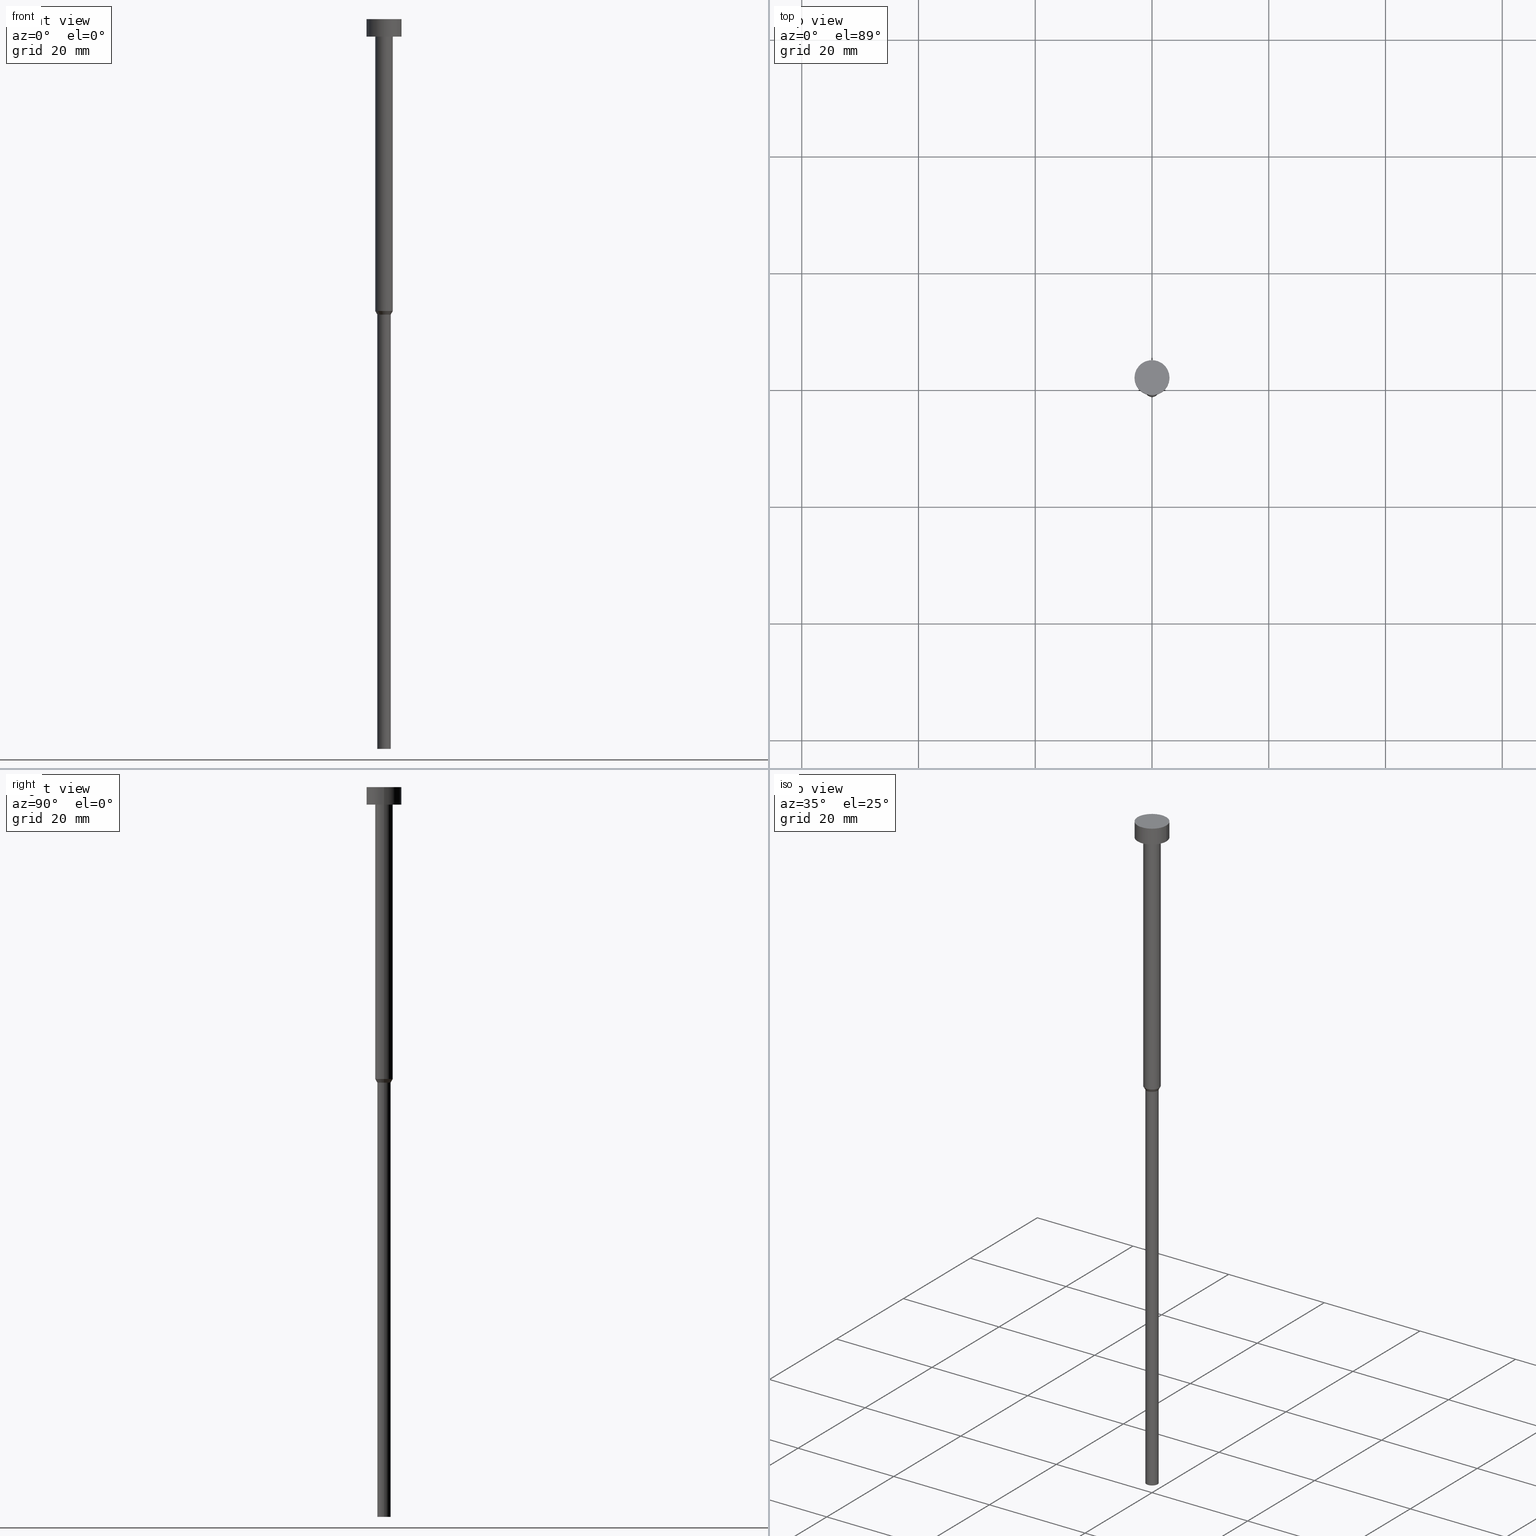
[diagram: canonical four-view strip — front | top / right | iso, engineering-drawing reading convention]
A machine part, canonical four-view strip (front | top / right | iso — engineering-drawing reading convention). The complete STEP part file that produces these views, byte-faithful:
ISO-10303-21;
HEADER;
FILE_DESCRIPTION (( 'STEP AP203' ),
    '1' );
FILE_NAME ('cbb3.STEP',
    '2023-02-13T10:03:09',
    ( '' ),
    ( '' ),
    'SwSTEP 2.0',
    'SolidWorks 2019',
    '' );
FILE_SCHEMA (( 'CONFIG_CONTROL_DESIGN' ));
ENDSEC;

DATA;
#1 = FACE_OUTER_BOUND ( 'NONE', #271, .T. ) ;
#2 = EDGE_CURVE ( 'NONE', #183, #113, #18, .T. ) ;
#3 = CIRCLE ( 'NONE', #246, 1.500000000000000000 ) ;
#4 = DIRECTION ( 'NONE',  ( 1.000000000000000000, 0.000000000000000000, 0.000000000000000000 ) ) ;
#5 = EDGE_LOOP ( 'NONE', ( #299, #293 ) ) ;
#6 = LOCAL_TIME ( 11, 3, 9.000000000000000000, #244 ) ;
#7 = ADVANCED_FACE ( 'NONE', ( #88 ), #315, .T. ) ;
#8 = DIRECTION ( 'NONE',  ( -0.000000000000000000, -0.000000000000000000, 1.000000000000000000 ) ) ;
#9 = EDGE_CURVE ( 'NONE', #332, #297, #261, .T. ) ;
#10 = ORIENTED_EDGE ( 'NONE', *, *, #2, .F. ) ;
#11 = PRODUCT_DEFINITION ( 'NEZN�M�', '', #24, #264 ) ;
#12 = CIRCLE ( 'NONE', #137, 3.000000000000000000 ) ;
#13 = ORIENTED_EDGE ( 'NONE', *, *, #241, .F. ) ;
#14 = ADVANCED_FACE ( 'NONE', ( #35 ), #66, .T. ) ;
#15 = CARTESIAN_POINT ( 'NONE',  ( 1.500000000000000000, 0.000000000000000000, -50.00000000000000000 ) ) ;
#16 = CARTESIAN_POINT ( 'NONE',  ( 0.000000000000000000, -3.000000000000000000, -3.000000000000000888 ) ) ;
#17 = CALENDAR_DATE ( 2023, 13, 2 ) ;
#18 = CIRCLE ( 'NONE', #201, 3.000000000000000000 ) ;
#19 = CARTESIAN_POINT ( 'NONE',  ( 0.000000000000000000, 0.000000000000000000, -50.60621778264910375 ) ) ;
#20 = CARTESIAN_POINT ( 'NONE',  ( 0.000000000000000000, 0.000000000000000000, 0.000000000000000000 ) ) ;
#21 = PERSON_AND_ORGANIZATION ( #287, #191 ) ;
#22 = DIRECTION ( 'NONE',  ( -0.000000000000000000, -0.000000000000000000, 1.000000000000000000 ) ) ;
#23 = EDGE_LOOP ( 'NONE', ( #343, #341, #154, #83 ) ) ;
#24 = PRODUCT_DEFINITION_FORMATION_WITH_SPECIFIED_SOURCE ( 'LIBOVOLN�', '', #289, .NOT_KNOWN. ) ;
#25 = PERSON_AND_ORGANIZATION_ROLE ( 'classification_officer' ) ;
#26 = APPROVAL_DATE_TIME ( #56, #167 ) ;
#27 = EDGE_CURVE ( 'NONE', #140, #64, #318, .T. ) ;
#28 = CYLINDRICAL_SURFACE ( 'NONE', #314, 3.000000000000000000 ) ;
#29 = CARTESIAN_POINT ( 'NONE',  ( -1.149999999999999911, 1.408343819019456028E-16, -125.0000000000000000 ) ) ;
#30 =( NAMED_UNIT ( * ) PLANE_ANGLE_UNIT ( ) SI_UNIT ( $, .RADIAN. ) );
#31 = CARTESIAN_POINT ( 'NONE',  ( -3.000000000000000000, 3.673940397442059868E-16, 0.000000000000000000 ) ) ;
#32 = AXIS2_PLACEMENT_3D ( 'NONE', #139, #117, #229 ) ;
#33 = CONICAL_SURFACE ( 'NONE', #242, 1.500000000000000000, 0.5235987755983008141 ) ;
#34 = AXIS2_PLACEMENT_3D ( 'NONE', #210, #176, #48 ) ;
#35 = FACE_OUTER_BOUND ( 'NONE', #339, .T. ) ;
#36 = DIRECTION ( 'NONE',  ( 1.000000000000000000, 0.000000000000000000, 0.000000000000000000 ) ) ;
#37 = PLANE ( 'NONE',  #232 ) ;
#38 = DIRECTION ( 'NONE',  ( -0.000000000000000000, -0.000000000000000000, 1.000000000000000000 ) ) ;
#39 = ORIENTED_EDGE ( 'NONE', *, *, #308, .F. ) ;
#40 = DIRECTION ( 'NONE',  ( 1.000000000000000000, 0.000000000000000000, 0.000000000000000000 ) ) ;
#41 = LOCAL_TIME ( 11, 3, 9.000000000000000000, #304 ) ;
#42 = ORIENTED_EDGE ( 'NONE', *, *, #116, .T. ) ;
#43 =( NAMED_UNIT ( * ) SI_UNIT ( $, .STERADIAN. ) SOLID_ANGLE_UNIT ( ) );
#44 = EDGE_CURVE ( 'NONE', #140, #194, #197, .T. ) ;
#45 = LINE ( 'NONE', #240, #233 ) ;
#46 = CYLINDRICAL_SURFACE ( 'NONE', #307, 1.149999999999999911 ) ;
#47 = AXIS2_PLACEMENT_3D ( 'NONE', #20, #73, #294 ) ;
#48 = DIRECTION ( 'NONE',  ( 1.000000000000000000, 0.000000000000000000, 0.000000000000000000 ) ) ;
#49 = DIRECTION ( 'NONE',  ( -0.000000000000000000, -0.000000000000000000, 1.000000000000000000 ) ) ;
#50 = ORIENTED_EDGE ( 'NONE', *, *, #241, .T. ) ;
#51 = APPROVAL_STATUS ( 'not_yet_approved' ) ;
#52 = PLANE ( 'NONE',  #121 ) ;
#53 = EDGE_LOOP ( 'NONE', ( #221, #42 ) ) ;
#54 = CARTESIAN_POINT ( 'NONE',  ( 0.000000000000000000, 0.000000000000000000, -3.673940397442059868E-16 ) ) ;
#55 = CC_DESIGN_DATE_AND_TIME_ASSIGNMENT ( #187, #245, ( #219 ) ) ;
#56 = DATE_AND_TIME ( #279, #41 ) ;
#57 = ADVANCED_FACE ( 'NONE', ( #169, #285 ), #37, .T. ) ;
#58 = VERTEX_POINT ( 'NONE', #174 ) ;
#59 = DIRECTION ( 'NONE',  ( -0.000000000000000000, -0.000000000000000000, 1.000000000000000000 ) ) ;
#60 =( LENGTH_UNIT ( ) NAMED_UNIT ( * ) SI_UNIT ( .MILLI., .METRE. ) );
#61 = DIRECTION ( 'NONE',  ( 1.000000000000000000, 0.000000000000000000, 0.000000000000000000 ) ) ;
#62 = PERSON_AND_ORGANIZATION ( #287, #191 ) ;
#63 = ORIENTED_EDGE ( 'NONE', *, *, #329, .T. ) ;
#64 = VERTEX_POINT ( 'NONE', #313 ) ;
#65 = APPROVAL_PERSON_ORGANIZATION ( #62, #167, #275 ) ;
#66 = PLANE ( 'NONE',  #226 ) ;
#67 = EDGE_LOOP ( 'NONE', ( #257, #84, #87, #142 ) ) ;
#68 = CARTESIAN_POINT ( 'NONE',  ( 0.000000000000000000, 0.000000000000000000, -3.000000000000000888 ) ) ;
#69 = DIRECTION ( 'NONE',  ( -1.000000000000000000, 0.000000000000000000, -0.000000000000000000 ) ) ;
#70 = PERSON_AND_ORGANIZATION ( #287, #191 ) ;
#71 = DIRECTION ( 'NONE',  ( 0.000000000000000000, 0.000000000000000000, -1.000000000000000000 ) ) ;
#72 = ADVANCED_FACE ( 'NONE', ( #98 ), #52, .T. ) ;
#73 = DIRECTION ( 'NONE',  ( -0.000000000000000000, -0.000000000000000000, 1.000000000000000000 ) ) ;
#74 = CARTESIAN_POINT ( 'NONE',  ( -1.500000000000000000, 1.836970198721029934E-16, -50.00000000000000000 ) ) ;
#75 = LINE ( 'NONE', #31, #135 ) ;
#76 = ADVANCED_FACE ( 'NONE', ( #323 ), #46, .T. ) ;
#77 = DIRECTION ( 'NONE',  ( -0.000000000000000000, -0.000000000000000000, 1.000000000000000000 ) ) ;
#78 = DATE_AND_TIME ( #326, #198 ) ;
#79 = EDGE_CURVE ( 'NONE', #336, #328, #12, .T. ) ;
#80 = DIRECTION ( 'NONE',  ( 1.000000000000000000, 0.000000000000000000, 0.000000000000000000 ) ) ;
#81 = PERSON_AND_ORGANIZATION_ROLE ( 'design_supplier' ) ;
#82 = CC_DESIGN_APPROVAL ( #167, ( #219 ) ) ;
#83 = ORIENTED_EDGE ( 'NONE', *, *, #116, .F. ) ;
#84 = ORIENTED_EDGE ( 'NONE', *, *, #9, .T. ) ;
#85 = ORIENTED_EDGE ( 'NONE', *, *, #27, .T. ) ;
#86 = DIRECTION ( 'NONE',  ( -0.000000000000000000, -0.000000000000000000, 1.000000000000000000 ) ) ;
#87 = ORIENTED_EDGE ( 'NONE', *, *, #150, .T. ) ;
#88 = FACE_OUTER_BOUND ( 'NONE', #220, .T. ) ;
#89 = EDGE_CURVE ( 'NONE', #113, #183, #189, .T. ) ;
#90 = COORDINATED_UNIVERSAL_TIME_OFFSET ( 1, 0, .AHEAD. ) ;
#91 = LOCAL_TIME ( 11, 3, 9.000000000000000000, #281 ) ;
#92 = EDGE_LOOP ( 'NONE', ( #132, #124, #216, #13 ) ) ;
#93 = ORIENTED_EDGE ( 'NONE', *, *, #155, .T. ) ;
#94 = CARTESIAN_POINT ( 'NONE',  ( -1.149999999999999911, 1.408343819019456028E-16, -50.60621778264910375 ) ) ;
#95 = EDGE_CURVE ( 'NONE', #194, #140, #129, .T. ) ;
#96 = VECTOR ( 'NONE', #305, 1000.000000000000000 ) ;
#97 = CARTESIAN_POINT ( 'NONE',  ( 1.500000000000000000, 0.000000000000000000, -50.00000000000000000 ) ) ;
#98 = FACE_OUTER_BOUND ( 'NONE', #5, .T. ) ;
#99 = CALENDAR_DATE ( 2023, 13, 2 ) ;
#100 = CARTESIAN_POINT ( 'NONE',  ( -3.000000000000000000, 3.673940397442059868E-16, -3.673940397442059868E-16 ) ) ;
#101 = FACE_OUTER_BOUND ( 'NONE', #23, .T. ) ;
#102 = APPLICATION_PROTOCOL_DEFINITION ( 'international standard', 'config_control_design', 1994, #312 ) ;
#103 = CARTESIAN_POINT ( 'NONE',  ( 0.000000000000000000, 0.000000000000000000, -1.836970198721029934E-16 ) ) ;
#104 = ORIENTED_EDGE ( 'NONE', *, *, #133, .F. ) ;
#105 = AXIS2_PLACEMENT_3D ( 'NONE', #19, #237, #296 ) ;
#106 = ORIENTED_EDGE ( 'NONE', *, *, #204, .F. ) ;
#107 = APPROVAL_DATE_TIME ( #303, #324 ) ;
#108 = PRODUCT_RELATED_PRODUCT_CATEGORY ( 'detail', '', ( #289 ) ) ;
#109 = CIRCLE ( 'NONE', #157, 1.500000000000000000 ) ;
#110 = ORIENTED_EDGE ( 'NONE', *, *, #150, .F. ) ;
#111 = ADVANCED_FACE ( 'NONE', ( #205 ), #33, .T. ) ;
#112 = AXIS2_PLACEMENT_3D ( 'NONE', #291, #345, #260 ) ;
#113 = VERTEX_POINT ( 'NONE', #267 ) ;
#114 = DIRECTION ( 'NONE',  ( 1.000000000000000000, 0.000000000000000000, 0.000000000000000000 ) ) ;
#115 = EDGE_CURVE ( 'NONE', #332, #140, #349, .T. ) ;
#116 = EDGE_CURVE ( 'NONE', #64, #58, #109, .T. ) ;
#117 = DIRECTION ( 'NONE',  ( -0.000000000000000000, -0.000000000000000000, 1.000000000000000000 ) ) ;
#118 = PERSON_AND_ORGANIZATION_ROLE ( 'creator' ) ;
#119 = LINE ( 'NONE', #97, #319 ) ;
#120 = DATE_TIME_ROLE ( 'creation_date' ) ;
#121 = AXIS2_PLACEMENT_3D ( 'NONE', #103, #330, #80 ) ;
#122 = APPROVAL_PERSON_ORGANIZATION ( #253, #324, #273 ) ;
#123 = CARTESIAN_POINT ( 'NONE',  ( 0.000000000000000000, 0.000000000000000000, -3.000000000000000888 ) ) ;
#124 = ORIENTED_EDGE ( 'NONE', *, *, #188, .T. ) ;
#125 = CYLINDRICAL_SURFACE ( 'NONE', #256, 1.149999999999999911 ) ;
#126 = CARTESIAN_POINT ( 'NONE',  ( 0.000000000000000000, 0.000000000000000000, 0.000000000000000000 ) ) ;
#127 = CARTESIAN_POINT ( 'NONE',  ( 0.000000000000000000, 0.000000000000000000, 0.000000000000000000 ) ) ;
#128 = APPROVAL_DATE_TIME ( #78, #214 ) ;
#129 = CIRCLE ( 'NONE', #218, 1.500000000000000000 ) ;
#130 = DIRECTION ( 'NONE',  ( 0.5000000000000016653, 0.000000000000000000, 0.8660254037844377084 ) ) ;
#131 = AXIS2_PLACEMENT_3D ( 'NONE', #193, #161, #36 ) ;
#132 = ORIENTED_EDGE ( 'NONE', *, *, #308, .T. ) ;
#133 = EDGE_CURVE ( 'NONE', #186, #297, #209, .T. ) ;
#134 = AXIS2_PLACEMENT_3D ( 'NONE', #263, #38, #344 ) ;
#135 = VECTOR ( 'NONE', #316, 1000.000000000000000 ) ;
#136 = CARTESIAN_POINT ( 'NONE',  ( -1.500000000000000000, 1.836970198721029934E-16, 0.000000000000000000 ) ) ;
#137 = AXIS2_PLACEMENT_3D ( 'NONE', #123, #77, #352 ) ;
#138 = LOCAL_TIME ( 11, 3, 9.000000000000000000, #90 ) ;
#139 = CARTESIAN_POINT ( 'NONE',  ( 0.000000000000000000, 0.000000000000000000, -50.00000000000000000 ) ) ;
#140 = VERTEX_POINT ( 'NONE', #266 ) ;
#141 = CC_DESIGN_PERSON_AND_ORGANIZATION_ASSIGNMENT ( #70, #118, ( #11 ) ) ;
#142 = ORIENTED_EDGE ( 'NONE', *, *, #44, .F. ) ;
#143 = CARTESIAN_POINT ( 'NONE',  ( 1.149999999999999911, 0.000000000000000000, -125.0000000000000000 ) ) ;
#144 = CARTESIAN_POINT ( 'NONE',  ( 3.000000000000000000, 0.000000000000000000, -3.000000000000000888 ) ) ;
#145 = MANIFOLD_SOLID_BREP ( 'Rotovat1', #282 ) ;
#146 = CIRCLE ( 'NONE', #105, 1.149999999999999911 ) ;
#147 = DIRECTION ( 'NONE',  ( 1.000000000000000000, 0.000000000000000000, 0.000000000000000000 ) ) ;
#148 = MECHANICAL_CONTEXT ( 'NONE', #327, 'mechanical' ) ;
#149 = DIRECTION ( 'NONE',  ( -0.000000000000000000, -0.000000000000000000, 1.000000000000000000 ) ) ;
#150 = EDGE_CURVE ( 'NONE', #297, #194, #119, .T. ) ;
#151 = CYLINDRICAL_SURFACE ( 'NONE', #168, 1.500000000000000000 ) ;
#152 = APPLICATION_PROTOCOL_DEFINITION ( 'international standard', 'config_control_design', 1994, #327 ) ;
#153 = DIRECTION ( 'NONE',  ( -0.000000000000000000, -0.000000000000000000, 1.000000000000000000 ) ) ;
#154 = ORIENTED_EDGE ( 'NONE', *, *, #217, .T. ) ;
#155 = EDGE_CURVE ( 'NONE', #297, #332, #146, .T. ) ;
#156 = CARTESIAN_POINT ( 'NONE',  ( 0.000000000000000000, 0.000000000000000000, -3.000000000000000888 ) ) ;
#157 = AXIS2_PLACEMENT_3D ( 'NONE', #156, #270, #231 ) ;
#158 = ORIENTED_EDGE ( 'NONE', *, *, #185, .F. ) ;
#159 = PERSON_AND_ORGANIZATION ( #287, #191 ) ;
#160 = AXIS2_PLACEMENT_3D ( 'NONE', #166, #283, #114 ) ;
#161 = DIRECTION ( 'NONE',  ( -0.000000000000000000, -0.000000000000000000, 1.000000000000000000 ) ) ;
#162 = EDGE_LOOP ( 'NONE', ( #39, #223 ) ) ;
#163 = CARTESIAN_POINT ( 'NONE',  ( 0.000000000000000000, 0.000000000000000000, -125.0000000000000000 ) ) ;
#164 = ADVANCED_FACE ( 'NONE', ( #1 ), #125, .T. ) ;
#165 = CARTESIAN_POINT ( 'NONE',  ( 3.000000000000000000, 0.000000000000000000, 0.000000000000000000 ) ) ;
#166 = CARTESIAN_POINT ( 'NONE',  ( 0.000000000000000000, 0.000000000000000000, 0.000000000000000000 ) ) ;
#167 = APPROVAL ( #306, 'NEUR�EN�' ) ;
#168 = AXIS2_PLACEMENT_3D ( 'NONE', #127, #86, #61 ) ;
#169 = FACE_BOUND ( 'NONE', #53, .T. ) ;
#170 = ORIENTED_EDGE ( 'NONE', *, *, #188, .F. ) ;
#171 = ADVANCED_FACE ( 'NONE', ( #203 ), #321, .T. ) ;
#172 = CARTESIAN_POINT ( 'NONE',  ( 0.000000000000000000, 0.000000000000000000, -125.0000000000000000 ) ) ;
#173 = CONICAL_SURFACE ( 'NONE', #131, 1.500000000000000000, 0.5235987755983008141 ) ;
#174 = CARTESIAN_POINT ( 'NONE',  ( 1.500000000000000000, 0.000000000000000000, -3.000000000000000888 ) ) ;
#175 = DIRECTION ( 'NONE',  ( -0.000000000000000000, -0.000000000000000000, 1.000000000000000000 ) ) ;
#176 = DIRECTION ( 'NONE',  ( 0.000000000000000000, 0.000000000000000000, 1.000000000000000000 ) ) ;
#177 = PERSON_AND_ORGANIZATION ( #287, #191 ) ;
#178 = DIRECTION ( 'NONE',  ( 1.000000000000000000, 0.000000000000000000, 0.000000000000000000 ) ) ;
#179 = CARTESIAN_POINT ( 'NONE',  ( 1.149999999999999911, 0.000000000000000000, 0.000000000000000000 ) ) ;
#180 = ORIENTED_EDGE ( 'NONE', *, *, #185, .T. ) ;
#181 = DIRECTION ( 'NONE',  ( 1.000000000000000000, 0.000000000000000000, 0.000000000000000000 ) ) ;
#182 = APPROVAL_PERSON_ORGANIZATION ( #21, #214, #354 ) ;
#183 = VERTEX_POINT ( 'NONE', #100 ) ;
#184 = CARTESIAN_POINT ( 'NONE',  ( 1.500000000000000000, 0.000000000000000000, 0.000000000000000000 ) ) ;
#185 = EDGE_CURVE ( 'NONE', #286, #332, #45, .T. ) ;
#186 = VERTEX_POINT ( 'NONE', #143 ) ;
#187 = DATE_AND_TIME ( #340, #91 ) ;
#188 = EDGE_CURVE ( 'NONE', #336, #183, #75, .T. ) ;
#189 = CIRCLE ( 'NONE', #290, 3.000000000000000000 ) ;
#190 = EDGE_LOOP ( 'NONE', ( #158, #334, #230, #222 ) ) ;
#191 = ORGANIZATION ( 'NEUR�EN�', 'NEUR�EN�', '' ) ;
#192 = DIRECTION ( 'NONE',  ( 1.000000000000000000, 0.000000000000000000, 0.000000000000000000 ) ) ;
#193 = CARTESIAN_POINT ( 'NONE',  ( 0.000000000000000000, 0.000000000000000000, -50.00000000000000000 ) ) ;
#194 = VERTEX_POINT ( 'NONE', #15 ) ;
#195 = FACE_OUTER_BOUND ( 'NONE', #67, .T. ) ;
#196 = DIRECTION ( 'NONE',  ( -1.000000000000000000, 0.000000000000000000, -0.000000000000000000 ) ) ;
#197 = CIRCLE ( 'NONE', #32, 1.500000000000000000 ) ;
#198 = LOCAL_TIME ( 11, 3, 9.000000000000000000, #208 ) ;
#199 = CARTESIAN_POINT ( 'NONE',  ( 0.000000000000000000, 0.000000000000000000, -50.60621778264910375 ) ) ;
#200 = PRODUCT_DEFINITION_SHAPE ( 'NONE', 'NONE',  #11 ) ;
#201 = AXIS2_PLACEMENT_3D ( 'NONE', #228, #346, #225 ) ;
#202 = VECTOR ( 'NONE', #295, 1000.000000000000000 ) ;
#203 = FACE_OUTER_BOUND ( 'NONE', #254, .T. ) ;
#204 = EDGE_CURVE ( 'NONE', #58, #64, #3, .T. ) ;
#205 = FACE_OUTER_BOUND ( 'NONE', #277, .T. ) ;
#206 = CARTESIAN_POINT ( 'NONE',  ( 0.000000000000000000, 0.000000000000000000, -50.00000000000000000 ) ) ;
#207 = ORIENTED_EDGE ( 'NONE', *, *, #95, .F. ) ;
#208 = COORDINATED_UNIVERSAL_TIME_OFFSET ( 1, 0, .AHEAD. ) ;
#209 = LINE ( 'NONE', #179, #333 ) ;
#210 = CARTESIAN_POINT ( 'NONE',  ( 0.000000000000000000, 0.000000000000000000, 0.000000000000000000 ) ) ;
#211 = APPROVAL_STATUS ( 'not_yet_approved' ) ;
#212 = PERSON_AND_ORGANIZATION ( #287, #191 ) ;
#213 = SHAPE_DEFINITION_REPRESENTATION ( #200, #355 ) ;
#214 = APPROVAL ( #51, 'NEUR�EN�' ) ;
#215 = ADVANCED_FACE ( 'NONE', ( #101 ), #151, .T. ) ;
#216 = ORIENTED_EDGE ( 'NONE', *, *, #89, .F. ) ;
#217 = EDGE_CURVE ( 'NONE', #194, #58, #335, .T. ) ;
#218 = AXIS2_PLACEMENT_3D ( 'NONE', #300, #175, #348 ) ;
#219 = SECURITY_CLASSIFICATION ( '', '', #274 ) ;
#220 = EDGE_LOOP ( 'NONE', ( #170, #347, #50, #10 ) ) ;
#221 = ORIENTED_EDGE ( 'NONE', *, *, #204, .T. ) ;
#222 = ORIENTED_EDGE ( 'NONE', *, *, #9, .F. ) ;
#223 = ORIENTED_EDGE ( 'NONE', *, *, #79, .F. ) ;
#224 = CARTESIAN_POINT ( 'NONE',  ( -3.000000000000000000, 3.673940397442059868E-16, -3.000000000000000888 ) ) ;
#225 = DIRECTION ( 'NONE',  ( 1.000000000000000000, 0.000000000000000000, 0.000000000000000000 ) ) ;
#226 = AXIS2_PLACEMENT_3D ( 'NONE', #172, #288, #69 ) ;
#227 = CIRCLE ( 'NONE', #251, 1.149999999999999911 ) ;
#228 = CARTESIAN_POINT ( 'NONE',  ( 0.000000000000000000, 0.000000000000000000, -3.673940397442059868E-16 ) ) ;
#229 = DIRECTION ( 'NONE',  ( 1.000000000000000000, 0.000000000000000000, 0.000000000000000000 ) ) ;
#230 = ORIENTED_EDGE ( 'NONE', *, *, #133, .T. ) ;
#231 = DIRECTION ( 'NONE',  ( 1.000000000000000000, 0.000000000000000000, 0.000000000000000000 ) ) ;
#232 = AXIS2_PLACEMENT_3D ( 'NONE', #16, #71, #196 ) ;
#233 = VECTOR ( 'NONE', #49, 1000.000000000000000 ) ;
#234 = CC_DESIGN_PERSON_AND_ORGANIZATION_ASSIGNMENT ( #159, #81, ( #24 ) ) ;
#235 = CARTESIAN_POINT ( 'NONE',  ( 0.000000000000000000, 0.000000000000000000, 0.000000000000000000 ) ) ;
#236 = UNCERTAINTY_MEASURE_WITH_UNIT (LENGTH_MEASURE( 1.000000000000000082E-05 ), #60, 'distance_accuracy_value', 'NONE');
#237 = DIRECTION ( 'NONE',  ( -0.000000000000000000, -0.000000000000000000, 1.000000000000000000 ) ) ;
#238 = ADVANCED_FACE ( 'NONE', ( #278 ), #28, .T. ) ;
#239 = PERSON_AND_ORGANIZATION_ROLE ( 'design_owner' ) ;
#240 = CARTESIAN_POINT ( 'NONE',  ( -1.149999999999999911, 1.408343819019456028E-16, 0.000000000000000000 ) ) ;
#241 = EDGE_CURVE ( 'NONE', #328, #113, #310, .T. ) ;
#242 = AXIS2_PLACEMENT_3D ( 'NONE', #206, #322, #178 ) ;
#243 = DIRECTION ( 'NONE',  ( -0.000000000000000000, -0.000000000000000000, 1.000000000000000000 ) ) ;
#244 = COORDINATED_UNIVERSAL_TIME_OFFSET ( 1, 0, .AHEAD. ) ;
#245 = DATE_TIME_ROLE ( 'classification_date' ) ;
#246 = AXIS2_PLACEMENT_3D ( 'NONE', #68, #298, #353 ) ;
#247 = ORIENTED_EDGE ( 'NONE', *, *, #329, .F. ) ;
#248 = CARTESIAN_POINT ( 'NONE',  ( 0.000000000000000000, 0.000000000000000000, 0.000000000000000000 ) ) ;
#249 = CARTESIAN_POINT ( 'NONE',  ( 1.149999999999999911, 0.000000000000000000, -50.60621778264910375 ) ) ;
#250 = ORIENTED_EDGE ( 'NONE', *, *, #115, .T. ) ;
#251 = AXIS2_PLACEMENT_3D ( 'NONE', #163, #252, #280 ) ;
#252 = DIRECTION ( 'NONE',  ( -0.000000000000000000, -0.000000000000000000, 1.000000000000000000 ) ) ;
#253 = PERSON_AND_ORGANIZATION ( #287, #191 ) ;
#254 = EDGE_LOOP ( 'NONE', ( #262, #85, #106, #351 ) ) ;
#255 = CC_DESIGN_PERSON_AND_ORGANIZATION_ASSIGNMENT ( #212, #25, ( #219 ) ) ;
#256 = AXIS2_PLACEMENT_3D ( 'NONE', #126, #243, #4 ) ;
#257 = ORIENTED_EDGE ( 'NONE', *, *, #115, .F. ) ;
#258 = CC_DESIGN_PERSON_AND_ORGANIZATION_ASSIGNMENT ( #269, #239, ( #289 ) ) ;
#259 = ORIENTED_EDGE ( 'NONE', *, *, #155, .F. ) ;
#260 = DIRECTION ( 'NONE',  ( 1.000000000000000000, 0.000000000000000000, 0.000000000000000000 ) ) ;
#261 = CIRCLE ( 'NONE', #337, 1.149999999999999911 ) ;
#262 = ORIENTED_EDGE ( 'NONE', *, *, #95, .T. ) ;
#263 = CARTESIAN_POINT ( 'NONE',  ( 0.000000000000000000, 0.000000000000000000, -125.0000000000000000 ) ) ;
#264 = DESIGN_CONTEXT ( 'detailed design', #312, 'design' ) ;
#265 = CC_DESIGN_SECURITY_CLASSIFICATION ( #219, ( #24 ) ) ;
#266 = CARTESIAN_POINT ( 'NONE',  ( -1.500000000000000000, 1.836970198721029934E-16, -50.00000000000000000 ) ) ;
#267 = CARTESIAN_POINT ( 'NONE',  ( 3.000000000000000000, 0.000000000000000000, -3.673940397442059868E-16 ) ) ;
#268 = EDGE_CURVE ( 'NONE', #286, #186, #227, .T. ) ;
#269 = PERSON_AND_ORGANIZATION ( #287, #191 ) ;
#270 = DIRECTION ( 'NONE',  ( -0.000000000000000000, -0.000000000000000000, 1.000000000000000000 ) ) ;
#271 = EDGE_LOOP ( 'NONE', ( #63, #180, #259, #104 ) ) ;
#272 = CIRCLE ( 'NONE', #134, 1.149999999999999911 ) ;
#273 = APPROVAL_ROLE ( '' ) ;
#274 = SECURITY_CLASSIFICATION_LEVEL ( 'unclassified' ) ;
#275 = APPROVAL_ROLE ( '' ) ;
#276 = VECTOR ( 'NONE', #342, 1000.000000000000000 ) ;
#277 = EDGE_LOOP ( 'NONE', ( #93, #250, #207, #110 ) ) ;
#278 = FACE_OUTER_BOUND ( 'NONE', #92, .T. ) ;
#279 = CALENDAR_DATE ( 2023, 13, 2 ) ;
#280 = DIRECTION ( 'NONE',  ( 1.000000000000000000, 0.000000000000000000, 0.000000000000000000 ) ) ;
#281 = COORDINATED_UNIVERSAL_TIME_OFFSET ( 1, 0, .AHEAD. ) ;
#282 = CLOSED_SHELL ( 'NONE', ( #238, #171, #111, #164, #14, #76, #350, #215, #57, #7, #72 ) ) ;
#283 = DIRECTION ( 'NONE',  ( -0.000000000000000000, -0.000000000000000000, 1.000000000000000000 ) ) ;
#284 = VECTOR ( 'NONE', #59, 1000.000000000000000 ) ;
#285 = FACE_OUTER_BOUND ( 'NONE', #162, .T. ) ;
#286 = VERTEX_POINT ( 'NONE', #29 ) ;
#287 = PERSON ( 'NEUR�EN�', 'NEUR�EN�', 'NEUR�EN�', ('NEUR�EN�'), ('NEUR�EN�'), ('NEUR�EN�') ) ;
#288 = DIRECTION ( 'NONE',  ( 0.000000000000000000, 0.000000000000000000, -1.000000000000000000 ) ) ;
#289 = PRODUCT ( 'cbb3', 'cbb3', '', ( #148 ) ) ;
#290 = AXIS2_PLACEMENT_3D ( 'NONE', #54, #153, #181 ) ;
#291 = CARTESIAN_POINT ( 'NONE',  ( 0.000000000000000000, 0.000000000000000000, -3.000000000000000888 ) ) ;
#292 =( GEOMETRIC_REPRESENTATION_CONTEXT ( 3 ) GLOBAL_UNCERTAINTY_ASSIGNED_CONTEXT ( ( #236 ) ) GLOBAL_UNIT_ASSIGNED_CONTEXT ( ( #60, #30, #43 ) ) REPRESENTATION_CONTEXT ( 'NONE', 'WORKASPACE' ) );
#293 = ORIENTED_EDGE ( 'NONE', *, *, #2, .T. ) ;
#294 = DIRECTION ( 'NONE',  ( 1.000000000000000000, 0.000000000000000000, 0.000000000000000000 ) ) ;
#295 = DIRECTION ( 'NONE',  ( -0.5000000000000016653, 6.123233995736786990E-17, 0.8660254037844377084 ) ) ;
#296 = DIRECTION ( 'NONE',  ( 1.000000000000000000, 0.000000000000000000, 0.000000000000000000 ) ) ;
#297 = VERTEX_POINT ( 'NONE', #249 ) ;
#298 = DIRECTION ( 'NONE',  ( -0.000000000000000000, -0.000000000000000000, 1.000000000000000000 ) ) ;
#299 = ORIENTED_EDGE ( 'NONE', *, *, #89, .T. ) ;
#300 = CARTESIAN_POINT ( 'NONE',  ( 0.000000000000000000, 0.000000000000000000, -50.00000000000000000 ) ) ;
#301 = ORIENTED_EDGE ( 'NONE', *, *, #268, .F. ) ;
#302 = CC_DESIGN_DATE_AND_TIME_ASSIGNMENT ( #320, #120, ( #11 ) ) ;
#303 = DATE_AND_TIME ( #99, #6 ) ;
#304 = COORDINATED_UNIVERSAL_TIME_OFFSET ( 1, 0, .AHEAD. ) ;
#305 = DIRECTION ( 'NONE',  ( -0.000000000000000000, -0.000000000000000000, 1.000000000000000000 ) ) ;
#306 = APPROVAL_STATUS ( 'not_yet_approved' ) ;
#307 = AXIS2_PLACEMENT_3D ( 'NONE', #235, #149, #147 ) ;
#308 = EDGE_CURVE ( 'NONE', #328, #336, #309, .T. ) ;
#309 = CIRCLE ( 'NONE', #112, 3.000000000000000000 ) ;
#310 = LINE ( 'NONE', #165, #284 ) ;
#311 = CC_DESIGN_PERSON_AND_ORGANIZATION_ASSIGNMENT ( #177, #331, ( #24 ) ) ;
#312 = APPLICATION_CONTEXT ( 'configuration controlled 3d designs of mechanical parts and assemblies' ) ;
#313 = CARTESIAN_POINT ( 'NONE',  ( -1.500000000000000000, 1.836970198721029934E-16, -3.000000000000000888 ) ) ;
#314 = AXIS2_PLACEMENT_3D ( 'NONE', #248, #8, #192 ) ;
#315 = CYLINDRICAL_SURFACE ( 'NONE', #160, 3.000000000000000000 ) ;
#316 = DIRECTION ( 'NONE',  ( -0.000000000000000000, -0.000000000000000000, 1.000000000000000000 ) ) ;
#317 = DIRECTION ( 'NONE',  ( -0.000000000000000000, -0.000000000000000000, 1.000000000000000000 ) ) ;
#318 = LINE ( 'NONE', #136, #276 ) ;
#319 = VECTOR ( 'NONE', #130, 1000.000000000000000 ) ;
#320 = DATE_AND_TIME ( #17, #138 ) ;
#321 = CYLINDRICAL_SURFACE ( 'NONE', #47, 1.500000000000000000 ) ;
#322 = DIRECTION ( 'NONE',  ( -0.000000000000000000, -0.000000000000000000, 1.000000000000000000 ) ) ;
#323 = FACE_OUTER_BOUND ( 'NONE', #190, .T. ) ;
#324 = APPROVAL ( #211, 'NEUR�EN�' ) ;
#325 = CC_DESIGN_APPROVAL ( #214, ( #11 ) ) ;
#326 = CALENDAR_DATE ( 2023, 13, 2 ) ;
#327 = APPLICATION_CONTEXT ( 'configuration controlled 3d designs of mechanical parts and assemblies' ) ;
#328 = VERTEX_POINT ( 'NONE', #144 ) ;
#329 = EDGE_CURVE ( 'NONE', #186, #286, #272, .T. ) ;
#330 = DIRECTION ( 'NONE',  ( 0.000000000000000000, -0.000000000000000000, 1.000000000000000000 ) ) ;
#331 = PERSON_AND_ORGANIZATION_ROLE ( 'creator' ) ;
#332 = VERTEX_POINT ( 'NONE', #94 ) ;
#333 = VECTOR ( 'NONE', #22, 1000.000000000000000 ) ;
#334 = ORIENTED_EDGE ( 'NONE', *, *, #268, .T. ) ;
#335 = LINE ( 'NONE', #184, #96 ) ;
#336 = VERTEX_POINT ( 'NONE', #224 ) ;
#337 = AXIS2_PLACEMENT_3D ( 'NONE', #199, #317, #40 ) ;
#338 = CC_DESIGN_APPROVAL ( #324, ( #24 ) ) ;
#339 = EDGE_LOOP ( 'NONE', ( #247, #301 ) ) ;
#340 = CALENDAR_DATE ( 2023, 13, 2 ) ;
#341 = ORIENTED_EDGE ( 'NONE', *, *, #44, .T. ) ;
#342 = DIRECTION ( 'NONE',  ( -0.000000000000000000, -0.000000000000000000, 1.000000000000000000 ) ) ;
#343 = ORIENTED_EDGE ( 'NONE', *, *, #27, .F. ) ;
#344 = DIRECTION ( 'NONE',  ( 1.000000000000000000, 0.000000000000000000, 0.000000000000000000 ) ) ;
#345 = DIRECTION ( 'NONE',  ( -0.000000000000000000, -0.000000000000000000, 1.000000000000000000 ) ) ;
#346 = DIRECTION ( 'NONE',  ( -0.000000000000000000, -0.000000000000000000, 1.000000000000000000 ) ) ;
#347 = ORIENTED_EDGE ( 'NONE', *, *, #79, .T. ) ;
#348 = DIRECTION ( 'NONE',  ( 1.000000000000000000, 0.000000000000000000, 0.000000000000000000 ) ) ;
#349 = LINE ( 'NONE', #74, #202 ) ;
#350 = ADVANCED_FACE ( 'NONE', ( #195 ), #173, .T. ) ;
#351 = ORIENTED_EDGE ( 'NONE', *, *, #217, .F. ) ;
#352 = DIRECTION ( 'NONE',  ( 1.000000000000000000, 0.000000000000000000, 0.000000000000000000 ) ) ;
#353 = DIRECTION ( 'NONE',  ( 1.000000000000000000, 0.000000000000000000, 0.000000000000000000 ) ) ;
#354 = APPROVAL_ROLE ( '' ) ;
#355 = ADVANCED_BREP_SHAPE_REPRESENTATION ( 'cbb3', ( #145, #34 ), #292 ) ;
ENDSEC;
END-ISO-10303-21;
